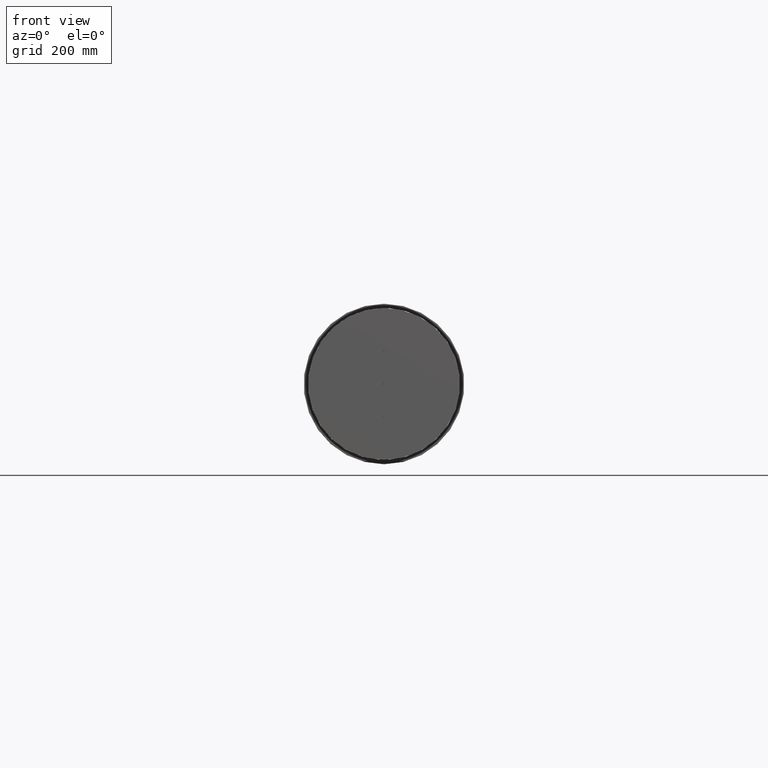
[diagram: clean part render]
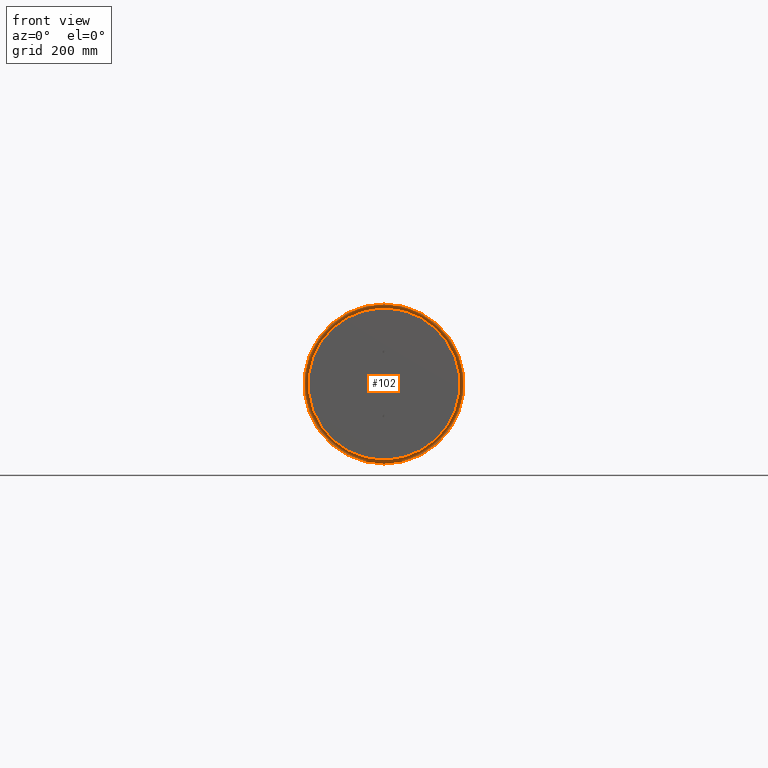
[diagram: same view with one face highlighted and labeled with its STEP entity id]
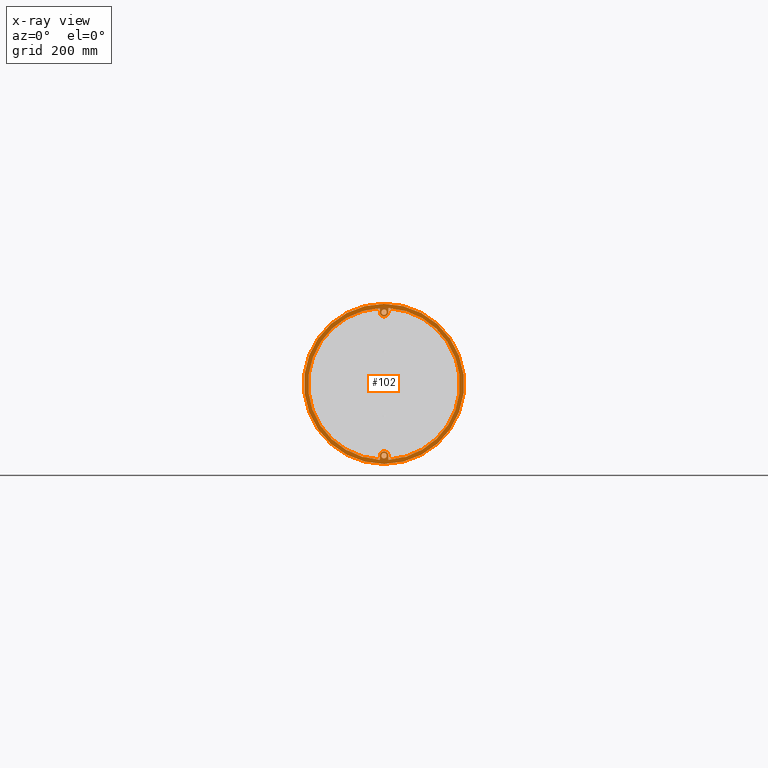
[diagram: x-ray of the same camera — body ghosted, the highlighted face saturated]
A machine part, front view. The second image highlights one B-rep face of the part: STEP entity #102.
The next image is the same camera in x-ray: the body ghosted, the highlighted face saturated — about 5% of this face is hidden behind the body in this view.
In plain terms, the highlighted planar face has unit normal (0, 1, 0).
Its self-contained STEP definition (entity closure, byte-faithful):
#102 = ADVANCED_FACE ( 'NONE', ( #2661, #2648, #2549, #2728 ), #414, .F. ) ;
#171 = CARTESIAN_POINT ( 'NONE',  ( 6.123233995736773200E-016, 0.0000000000000000000, -129.0000000000000300 ) ) ;
#232 = DIRECTION ( 'NONE',  ( 0.0000000000000000000, 1.000000000000000000, 0.0000000000000000000 ) ) ;
#414 = PLANE ( 'NONE',  #1986 ) ;
#418 = DIRECTION ( 'NONE',  ( 0.0000000000000000000, -0.0000000000000000000, 1.000000000000000000 ) ) ;
#420 = CARTESIAN_POINT ( 'NONE',  ( 0.0000000000000000000, 0.0000000000000000000, 0.0000000000000000000 ) ) ;
#426 = VERTEX_POINT ( 'NONE', #171 ) ;
#495 = VERTEX_POINT ( 'NONE', #1205 ) ;
#633 = VERTEX_POINT ( 'NONE', #1186 ) ;
#639 = VERTEX_POINT ( 'NONE', #1297 ) ;
#698 = CARTESIAN_POINT ( 'NONE',  ( 8.000000470915647800, 0.0000000000000000000, -141.7744771485090200 ) ) ;
#701 = CARTESIAN_POINT ( 'NONE',  ( 1.830846964725293600E-014, 0.0000000000000000000, 149.5000000000000600 ) ) ;
#796 = VERTEX_POINT ( 'NONE', #698 ) ;
#863 = VERTEX_POINT ( 'NONE', #701 ) ;
#992 = VERTEX_POINT ( 'NONE', #1261 ) ;
#1063 = CARTESIAN_POINT ( 'NONE',  ( 8.000000470915647800, 0.0000000000000000000, 134.0000000000000300 ) ) ;
#1069 = CARTESIAN_POINT ( 'NONE',  ( -8.000000470915663800, 0.0000000000000000000, 134.0000000000000300 ) ) ;
#1107 = CARTESIAN_POINT ( 'NONE',  ( -8.000000470915729500, 0.0000000000000000000, 141.7744771485090200 ) ) ;
#1121 = CARTESIAN_POINT ( 'NONE',  ( 6.123233995736773200E-016, 0.0000000000000000000, 139.0000000000000300 ) ) ;
#1145 = VERTEX_POINT ( 'NONE', #1393 ) ;
#1153 = VERTEX_POINT ( 'NONE', #1121 ) ;
#1175 = VERTEX_POINT ( 'NONE', #1454 ) ;
#1186 = CARTESIAN_POINT ( 'NONE',  ( -8.000000470915678000, 0.0000000000000000000, -134.0000000000000300 ) ) ;
#1205 = CARTESIAN_POINT ( 'NONE',  ( 0.0000000000000000000, 0.0000000000000000000, -149.5000000000000600 ) ) ;
#1261 = CARTESIAN_POINT ( 'NONE',  ( 0.0000000000000000000, 0.0000000000000000000, 125.9999995290843600 ) ) ;
#1297 = CARTESIAN_POINT ( 'NONE',  ( 8.000000470915663800, 0.0000000000000000000, -134.0000000000000300 ) ) ;
#1324 = VERTEX_POINT ( 'NONE', #1063 ) ;
#1346 = VERTEX_POINT ( 'NONE', #1107 ) ;
#1393 = CARTESIAN_POINT ( 'NONE',  ( -8.000000470915667300, 0.0000000000000000000, -141.7744771485089600 ) ) ;
#1396 = VERTEX_POINT ( 'NONE', #1069 ) ;
#1412 = VERTEX_POINT ( 'NONE', #1415 ) ;
#1413 = VERTEX_POINT ( 'NONE', #1480 ) ;
#1415 = CARTESIAN_POINT ( 'NONE',  ( 8.000000470915729500, 0.0000000000000000000, 141.7744771485090200 ) ) ;
#1454 = CARTESIAN_POINT ( 'NONE',  ( 0.0000000000000000000, 0.0000000000000000000, 129.0000000000000300 ) ) ;
#1480 = CARTESIAN_POINT ( 'NONE',  ( 0.0000000000000000000, 0.0000000000000000000, -139.0000000000000300 ) ) ;
#1488 = AXIS2_PLACEMENT_3D ( 'NONE', #8044, #8303, #8277 ) ;
#1500 = AXIS2_PLACEMENT_3D ( 'NONE', #7479, #7506, #7508 ) ;
#1538 = AXIS2_PLACEMENT_3D ( 'NONE', #8021, #8316, #8311 ) ;
#1548 = AXIS2_PLACEMENT_3D ( 'NONE', #7006, #7007, #7008 ) ;
#1550 = AXIS2_PLACEMENT_3D ( 'NONE', #7009, #6932, #6934 ) ;
#1565 = AXIS2_PLACEMENT_3D ( 'NONE', #3408, #3412, #3413 ) ;
#1596 = AXIS2_PLACEMENT_3D ( 'NONE', #4709, #4584, #4599 ) ;
#1612 = AXIS2_PLACEMENT_3D ( 'NONE', #3407, #3409, #3411 ) ;
#1645 = AXIS2_PLACEMENT_3D ( 'NONE', #4308, #3921, #4522 ) ;
#1725 = AXIS2_PLACEMENT_3D ( 'NONE', #8222, #8229, #8228 ) ;
#1865 = AXIS2_PLACEMENT_3D ( 'NONE', #3119, #3092, #3116 ) ;
#1986 = AXIS2_PLACEMENT_3D ( 'NONE', #420, #232, #418 ) ;
#2021 = EDGE_CURVE ( 'NONE', #1175, #1153, #5875, .T. ) ;
#2101 = EDGE_CURVE ( 'NONE', #633, #1145, #5961, .T. ) ;
#2150 = EDGE_CURVE ( 'NONE', #1145, #1346, #5920, .T. ) ;
#2152 = EDGE_CURVE ( 'NONE', #863, #495, #5867, .T. ) ;
#2262 = CIRCLE ( 'NONE', #1538, 8.000000470915674500 ) ;
#2358 = LINE ( 'NONE', #7485, #2455 ) ;
#2359 = CIRCLE ( 'NONE', #1500, 5.000000000000004400 ) ;
#2414 = CIRCLE ( 'NONE', #1725, 149.5000000000000600 ) ;
#2439 = CIRCLE ( 'NONE', #1488, 5.000000000000004400 ) ;
#2455 = VECTOR ( 'NONE', #7685, 1000.000000000000000 ) ;
#2515 = LINE ( 'NONE', #8214, #2522 ) ;
#2522 = VECTOR ( 'NONE', #7824, 1000.000000000000000 ) ;
#2549 = FACE_BOUND ( 'NONE', #7342, .T. ) ;
#2648 = FACE_OUTER_BOUND ( 'NONE', #7295, .T. ) ;
#2661 = FACE_BOUND ( 'NONE', #7324, .T. ) ;
#2728 = FACE_BOUND ( 'NONE', #7424, .T. ) ;
#3092 = DIRECTION ( 'NONE',  ( 0.0000000000000000000, 1.000000000000000000, -0.0000000000000000000 ) ) ;
#3116 = DIRECTION ( 'NONE',  ( 0.0000000000000000000, 0.0000000000000000000, -1.000000000000000000 ) ) ;
#3119 = CARTESIAN_POINT ( 'NONE',  ( 0.0000000000000000000, 0.0000000000000000000, 134.0000000000000300 ) ) ;
#3407 = CARTESIAN_POINT ( 'NONE',  ( 0.0000000000000000000, 0.0000000000000000000, 0.0000000000000000000 ) ) ;
#3408 = CARTESIAN_POINT ( 'NONE',  ( 0.0000000000000000000, 0.0000000000000000000, 0.0000000000000000000 ) ) ;
#3409 = DIRECTION ( 'NONE',  ( 0.0000000000000000000, 1.000000000000000000, 0.0000000000000000000 ) ) ;
#3411 = DIRECTION ( 'NONE',  ( 0.0000000000000000000, 0.0000000000000000000, 1.000000000000000000 ) ) ;
#3412 = DIRECTION ( 'NONE',  ( 0.0000000000000000000, 1.000000000000000000, 0.0000000000000000000 ) ) ;
#3413 = DIRECTION ( 'NONE',  ( 0.0000000000000000000, 0.0000000000000000000, 1.000000000000000000 ) ) ;
#3910 = DIRECTION ( 'NONE',  ( 4.462611292926684300E-016, -0.0000000000000000000, -1.000000000000000000 ) ) ;
#3915 = CARTESIAN_POINT ( 'NONE',  ( -8.000000470915674500, 0.0000000000000000000, -141.7744771485089100 ) ) ;
#3921 = DIRECTION ( 'NONE',  ( 0.0000000000000000000, 1.000000000000000000, 0.0000000000000000000 ) ) ;
#4308 = CARTESIAN_POINT ( 'NONE',  ( 0.0000000000000000000, 0.0000000000000000000, 0.0000000000000000000 ) ) ;
#4522 = DIRECTION ( 'NONE',  ( 0.0000000000000000000, 0.0000000000000000000, 1.000000000000000000 ) ) ;
#4584 = DIRECTION ( 'NONE',  ( -0.0000000000000000000, -1.000000000000000000, 0.0000000000000000000 ) ) ;
#4599 = DIRECTION ( 'NONE',  ( 0.0000000000000000000, 0.0000000000000000000, -1.000000000000000000 ) ) ;
#4709 = CARTESIAN_POINT ( 'NONE',  ( 0.0000000000000000000, 0.0000000000000000000, 134.0000000000000300 ) ) ;
#4945 = EDGE_CURVE ( 'NONE', #992, #1324, #5959, .T. ) ;
#5026 = EDGE_CURVE ( 'NONE', #1413, #426, #5382, .T. ) ;
#5028 = EDGE_CURVE ( 'NONE', #1396, #992, #5462, .T. ) ;
#5119 = EDGE_CURVE ( 'NONE', #1346, #1396, #5500, .T. ) ;
#5129 = EDGE_CURVE ( 'NONE', #426, #1413, #2359, .T. ) ;
#5131 = EDGE_CURVE ( 'NONE', #796, #639, #2358, .T. ) ;
#5160 = EDGE_CURVE ( 'NONE', #639, #633, #2262, .T. ) ;
#5165 = EDGE_CURVE ( 'NONE', #1153, #1175, #2439, .T. ) ;
#5238 = EDGE_CURVE ( 'NONE', #495, #863, #2414, .T. ) ;
#5307 = EDGE_CURVE ( 'NONE', #1324, #1412, #2515, .T. ) ;
#5368 = EDGE_CURVE ( 'NONE', #1412, #796, #5834, .T. ) ;
#5382 = CIRCLE ( 'NONE', #1548, 5.000000000000004400 ) ;
#5462 = CIRCLE ( 'NONE', #1550, 8.000000470915674500 ) ;
#5498 = VECTOR ( 'NONE', #7744, 1000.000000000000000 ) ;
#5500 = LINE ( 'NONE', #7730, #5498 ) ;
#5834 = CIRCLE ( 'NONE', #1645, 142.0000083741819900 ) ;
#5867 = CIRCLE ( 'NONE', #1565, 149.5000000000000600 ) ;
#5875 = CIRCLE ( 'NONE', #1865, 5.000000000000004400 ) ;
#5920 = CIRCLE ( 'NONE', #1612, 142.0000083741819600 ) ;
#5959 = CIRCLE ( 'NONE', #1596, 8.000000470915674500 ) ;
#5961 = LINE ( 'NONE', #3915, #5963 ) ;
#5963 = VECTOR ( 'NONE', #3910, 1000.000000000000000 ) ;
#6180 = ORIENTED_EDGE ( 'NONE', *, *, #5165, .T. ) ;
#6181 = ORIENTED_EDGE ( 'NONE', *, *, #2021, .T. ) ;
#6420 = ORIENTED_EDGE ( 'NONE', *, *, #5238, .F. ) ;
#6640 = ORIENTED_EDGE ( 'NONE', *, *, #5026, .T. ) ;
#6654 = ORIENTED_EDGE ( 'NONE', *, *, #5028, .T. ) ;
#6655 = ORIENTED_EDGE ( 'NONE', *, *, #5160, .T. ) ;
#6759 = ORIENTED_EDGE ( 'NONE', *, *, #5119, .T. ) ;
#6760 = ORIENTED_EDGE ( 'NONE', *, *, #2101, .T. ) ;
#6767 = ORIENTED_EDGE ( 'NONE', *, *, #2150, .T. ) ;
#6779 = ORIENTED_EDGE ( 'NONE', *, *, #5307, .T. ) ;
#6782 = ORIENTED_EDGE ( 'NONE', *, *, #5368, .T. ) ;
#6784 = ORIENTED_EDGE ( 'NONE', *, *, #5131, .T. ) ;
#6794 = ORIENTED_EDGE ( 'NONE', *, *, #4945, .T. ) ;
#6809 = ORIENTED_EDGE ( 'NONE', *, *, #5129, .T. ) ;
#6820 = ORIENTED_EDGE ( 'NONE', *, *, #2152, .F. ) ;
#6932 = DIRECTION ( 'NONE',  ( -0.0000000000000000000, -1.000000000000000000, 0.0000000000000000000 ) ) ;
#6934 = DIRECTION ( 'NONE',  ( 0.0000000000000000000, 0.0000000000000000000, -1.000000000000000000 ) ) ;
#7006 = CARTESIAN_POINT ( 'NONE',  ( 0.0000000000000000000, 0.0000000000000000000, -134.0000000000000300 ) ) ;
#7007 = DIRECTION ( 'NONE',  ( 0.0000000000000000000, 1.000000000000000000, 0.0000000000000000000 ) ) ;
#7008 = DIRECTION ( 'NONE',  ( 0.0000000000000000000, 0.0000000000000000000, 1.000000000000000000 ) ) ;
#7009 = CARTESIAN_POINT ( 'NONE',  ( 0.0000000000000000000, 0.0000000000000000000, 134.0000000000000300 ) ) ;
#7295 = EDGE_LOOP ( 'NONE', ( #6420, #6820 ) ) ;
#7324 = EDGE_LOOP ( 'NONE', ( #6181, #6180 ) ) ;
#7342 = EDGE_LOOP ( 'NONE', ( #6782, #6784, #6655, #6760, #6767, #6759, #6654, #6794, #6779 ) ) ;
#7424 = EDGE_LOOP ( 'NONE', ( #6640, #6809 ) ) ;
#7479 = CARTESIAN_POINT ( 'NONE',  ( 0.0000000000000000000, 0.0000000000000000000, -134.0000000000000300 ) ) ;
#7485 = CARTESIAN_POINT ( 'NONE',  ( 8.000000470915647800, 0.0000000000000000000, -141.7744771485090200 ) ) ;
#7506 = DIRECTION ( 'NONE',  ( 0.0000000000000000000, 1.000000000000000000, 0.0000000000000000000 ) ) ;
#7508 = DIRECTION ( 'NONE',  ( 0.0000000000000000000, 0.0000000000000000000, 1.000000000000000000 ) ) ;
#7685 = DIRECTION ( 'NONE',  ( 2.231305646463310100E-016, 0.0000000000000000000, 1.000000000000000000 ) ) ;
#7730 = CARTESIAN_POINT ( 'NONE',  ( -8.000000470915729500, 0.0000000000000000000, 141.7744771485090200 ) ) ;
#7744 = DIRECTION ( 'NONE',  ( 6.693916939389930700E-015, 0.0000000000000000000, -1.000000000000000000 ) ) ;
#7824 = DIRECTION ( 'NONE',  ( 1.048713653837755700E-014, -0.0000000000000000000, 1.000000000000000000 ) ) ;
#8021 = CARTESIAN_POINT ( 'NONE',  ( 0.0000000000000000000, 0.0000000000000000000, -134.0000000000000300 ) ) ;
#8044 = CARTESIAN_POINT ( 'NONE',  ( 0.0000000000000000000, 0.0000000000000000000, 134.0000000000000300 ) ) ;
#8214 = CARTESIAN_POINT ( 'NONE',  ( 8.000000470915729500, 0.0000000000000000000, 141.7744771485090200 ) ) ;
#8222 = CARTESIAN_POINT ( 'NONE',  ( 0.0000000000000000000, 0.0000000000000000000, 0.0000000000000000000 ) ) ;
#8228 = DIRECTION ( 'NONE',  ( 0.0000000000000000000, 0.0000000000000000000, 1.000000000000000000 ) ) ;
#8229 = DIRECTION ( 'NONE',  ( 0.0000000000000000000, 1.000000000000000000, 0.0000000000000000000 ) ) ;
#8277 = DIRECTION ( 'NONE',  ( 0.0000000000000000000, 0.0000000000000000000, -1.000000000000000000 ) ) ;
#8303 = DIRECTION ( 'NONE',  ( 0.0000000000000000000, 1.000000000000000000, -0.0000000000000000000 ) ) ;
#8311 = DIRECTION ( 'NONE',  ( 0.0000000000000000000, 0.0000000000000000000, 1.000000000000000000 ) ) ;
#8316 = DIRECTION ( 'NONE',  ( -0.0000000000000000000, -1.000000000000000000, -0.0000000000000000000 ) ) ;